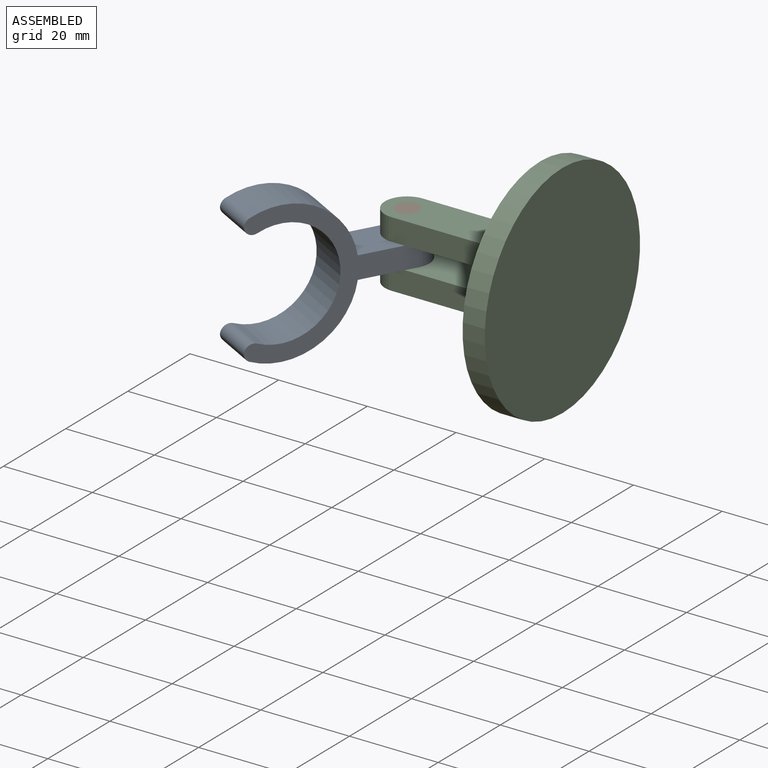
[diagram: assembled view]
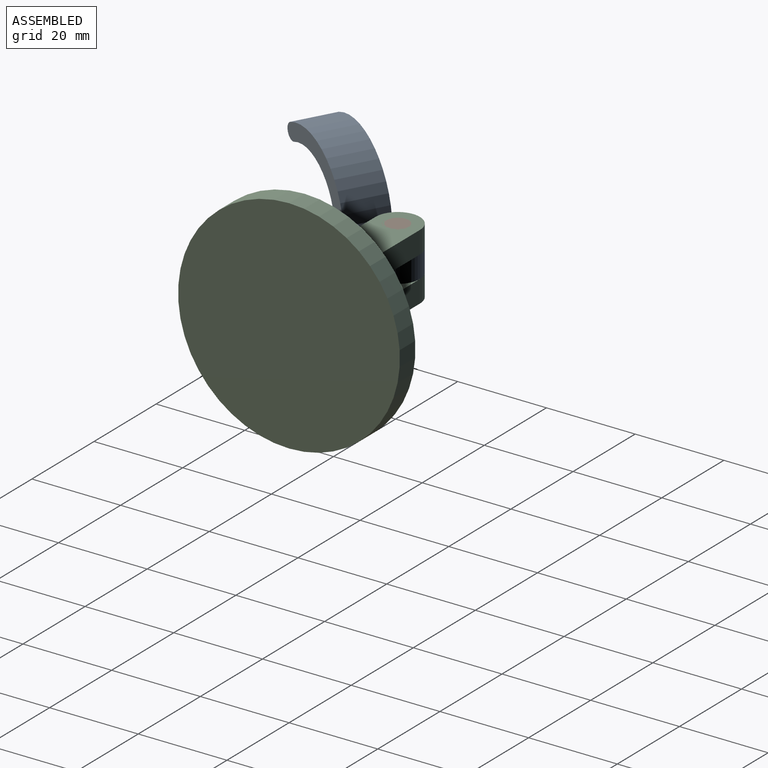
[diagram: assembled view, second angle]
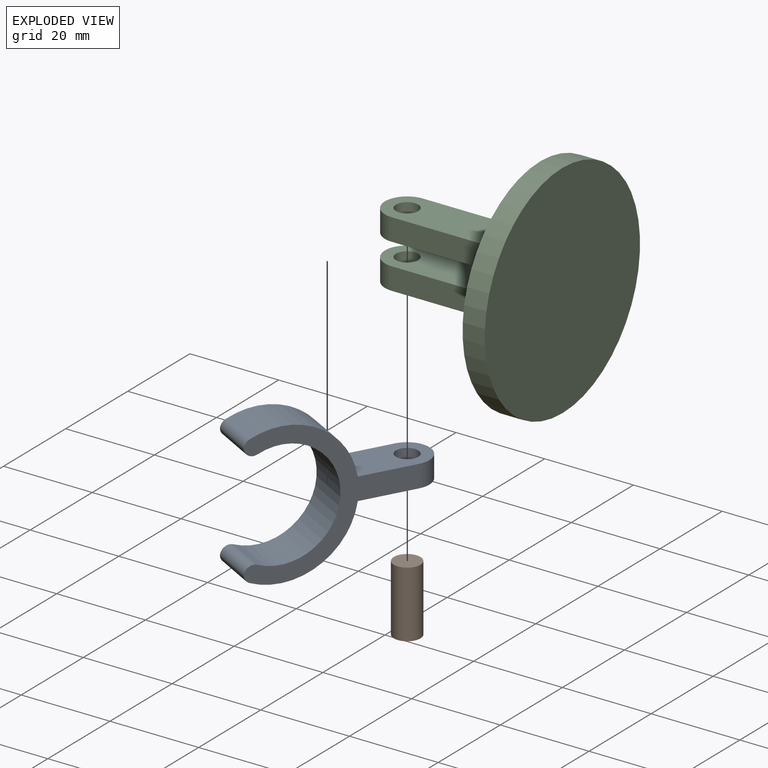
[diagram: exploded view]
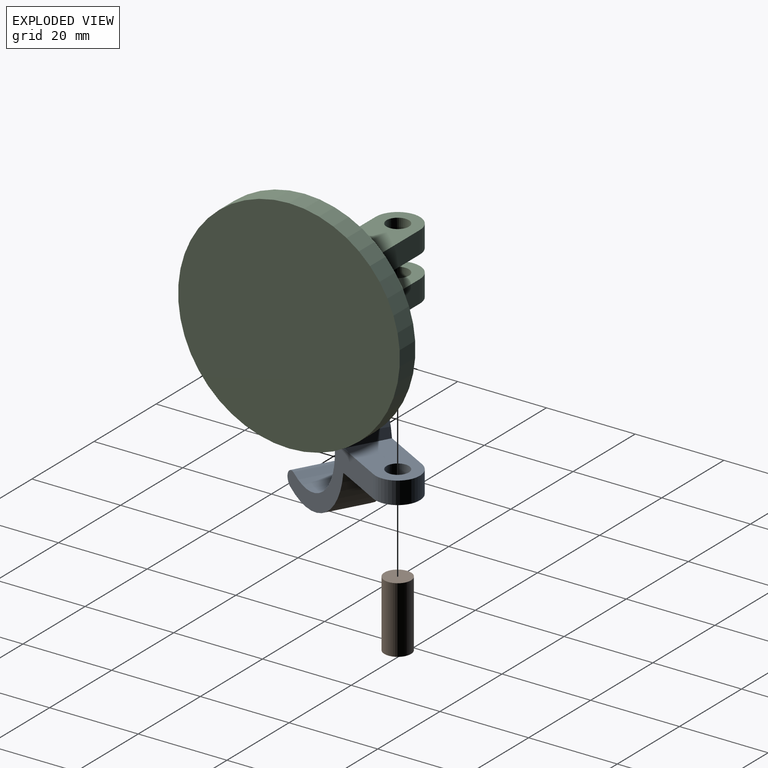
[diagram: exploded view, second angle]
ASSEMBLY  parts=3 mates=2
PART A: 13 faces, bbox 41.1x32x10 mm
  f0: cylinder r=16mm len=22.28mm, axis (0,0,-1), area 292.9mm2, adj f3,f4,f7,f10
  f1: cylinder r=12.25mm len=24.5mm, axis (0,0,-1), area 485mm2, adj f3,f4,f6,f8
  f2: cylinder r=16mm len=22.28mm, axis (0,0,-1), area 292.9mm2, adj f3,f4,f5,f9
  f3: plane 36.06x32mm, normal (0,0,1), area 283.9mm2, adj f0,f1,f2,f5,f6,f7,f8,f9
  f4: plane 36.06x32mm, normal (0,0,-1), area 283.9mm2, adj f0,f1,f2,f5,f6,f7,f8,f9
  f5: cylinder r=2mm len=10mm, axis (0,0,-1), area 21.7mm2, adj f2,f3,f4,f6
  f6: cylinder r=2mm len=10mm, axis (0,0,-1), area 38.2mm2, adj f1,f3,f4,f5
  f7: cylinder r=2mm len=10mm, axis (0,0,-1), area 21.7mm2, adj f0,f3,f4,f8
  f8: cylinder r=2mm len=10mm, axis (0,0,-1), area 38.2mm2, adj f1,f3,f4,f7
  f9: plane 17.6x10mm, normal (0,1,0), area 145.6mm2, adj f2,f3,f4,f11,f12
  f10: plane 17.6x10mm, normal (0,-1,0), area 145.6mm2, adj f0,f3,f4,f11,f12
  f11: cylinder r=2.5mm len=5mm, axis (0,-1,0), area 78.5mm2, adj f9,f10
  f12: cylinder r=5mm len=10mm, axis (0,-1,0), area 78.5mm2, adj f3,f4,f9,f10
PART B: 3 faces, bbox 6x6x15 mm
  f0: cylinder r=3mm len=15mm, axis (0,0,-1), area 282.7mm2, adj f1,f2
  f1: plane 6x6mm, normal (0,0,1), area 28.3mm2, adj f0
  f2: plane 6x6mm, normal (0,0,-1), area 28.3mm2, adj f0
PART C: 14 faces, bbox 50x50x40 mm
  f0: plane 30x15mm, normal (0,-1,0), area 350mm2, adj f1,f4,f6,f7,f8,f9,f12,f13
  f1: plane 50x50mm, normal (0,0,1), area 1813.5mm2, adj f0,f2,f4,f5,f6
  f2: cylinder r=25mm len=50mm, axis (0,0,-1), area 785.4mm2, adj f1,f3
  f3: plane 50x50mm, normal (0,0,-1), area 1963.5mm2, adj f2
  f4: plane 35x10mm, normal (1,0,0), area 319.6mm2, adj f0,f1,f5,f10,f13
  f5: plane 30x15mm, normal (0,1,0), area 350mm2, adj f1,f4,f6,f7,f8,f9,f12,f13
  f6: plane 35x10mm, normal (-1,0,0), area 319.6mm2, adj f0,f1,f5,f11,f12
  f7: plane 25x10mm, normal (1,0,0), area 219.6mm2, adj f0,f5,f9,f11,f12
  f8: plane 25x10mm, normal (-1,0,0), area 219.6mm2, adj f0,f5,f9,f10,f13
  f9: plane 10x5mm, normal (0,0,1), area 50mm2, adj f0,f5,f7,f8
  f10: cylinder r=2.5mm len=5mm, axis (1,0,0), area 78.5mm2, adj f4,f8
  f11: cylinder r=2.5mm len=5mm, axis (1,0,0), area 78.5mm2, adj f6,f7
  f12: cylinder r=5mm len=10mm, axis (-1,0,0), area 78.5mm2, adj f0,f5,f6,f7
  f13: cylinder r=5mm len=10mm, axis (-1,0,0), area 78.5mm2, adj f0,f4,f5,f8
PLACE A rot(axis=(-0.77,-0.45,0.45),105deg) t=(-44.34,-27.29,0)mm
PLACE B t=(-35,0,-7.5)mm
PLACE C rot(axis=(0,-1,0),90deg) t=(0,0,0)mm
MATE revolute A.f12 <-> C.f10  axis (0,0,-1) through (-35,0,-2.5)mm
MATE fastened B.f0 <-> C.f10  axis (0,0,-1) through (-35,0,-7.5)mm
